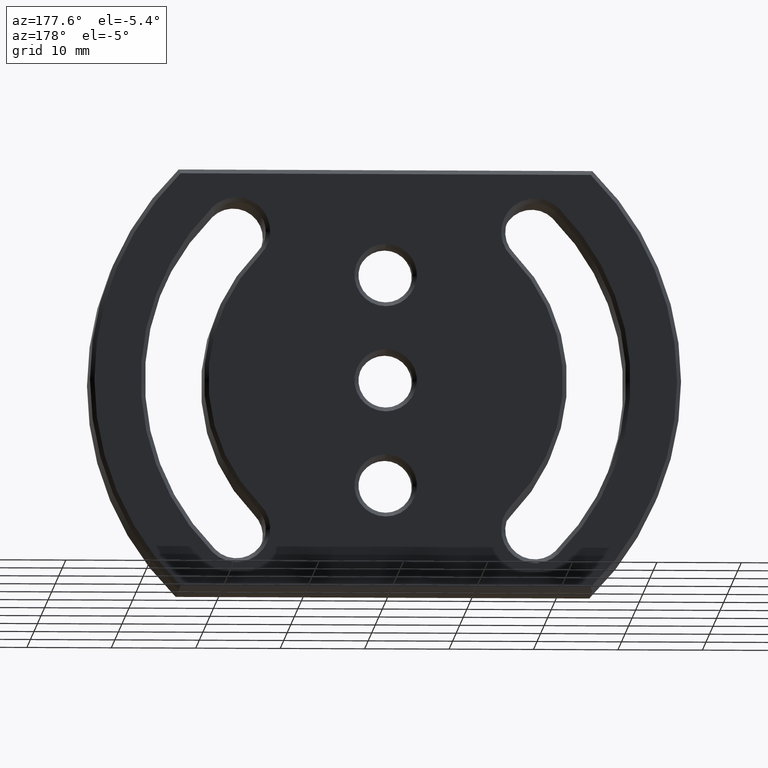
[diagram: clean part render]
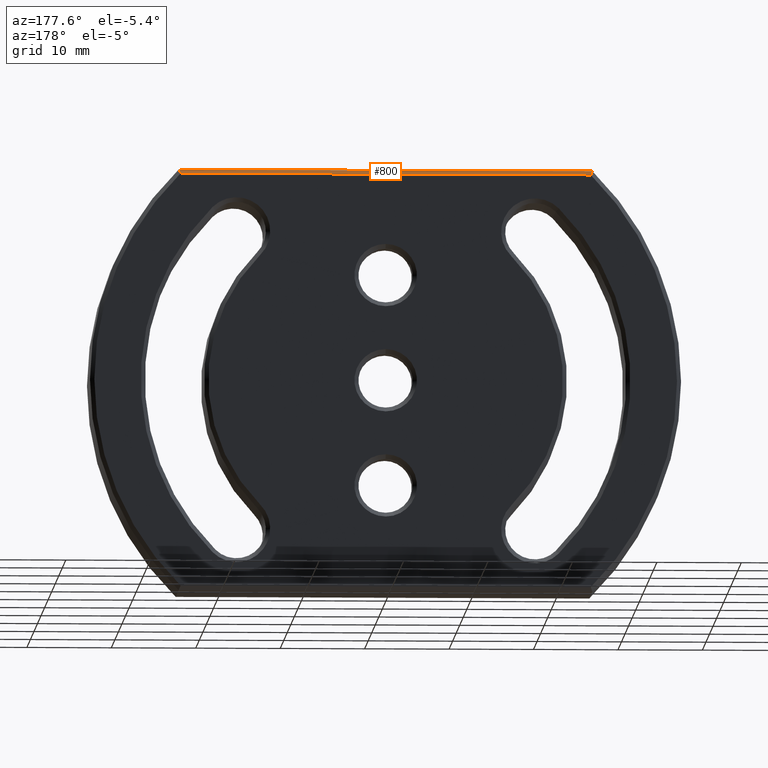
[diagram: same view with one face highlighted and labeled with its STEP entity id]
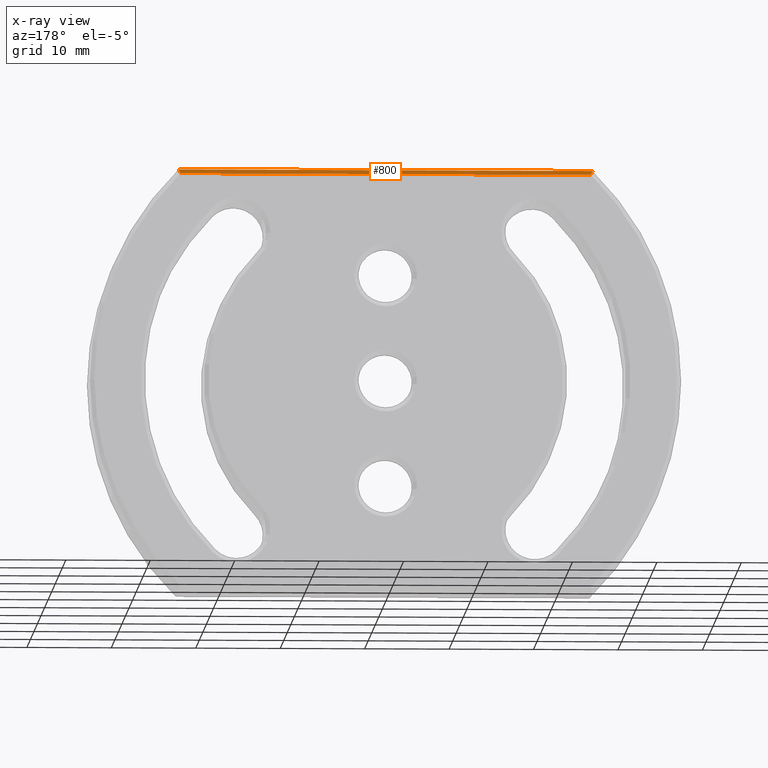
[diagram: x-ray of the same camera — body ghosted, the highlighted face saturated]
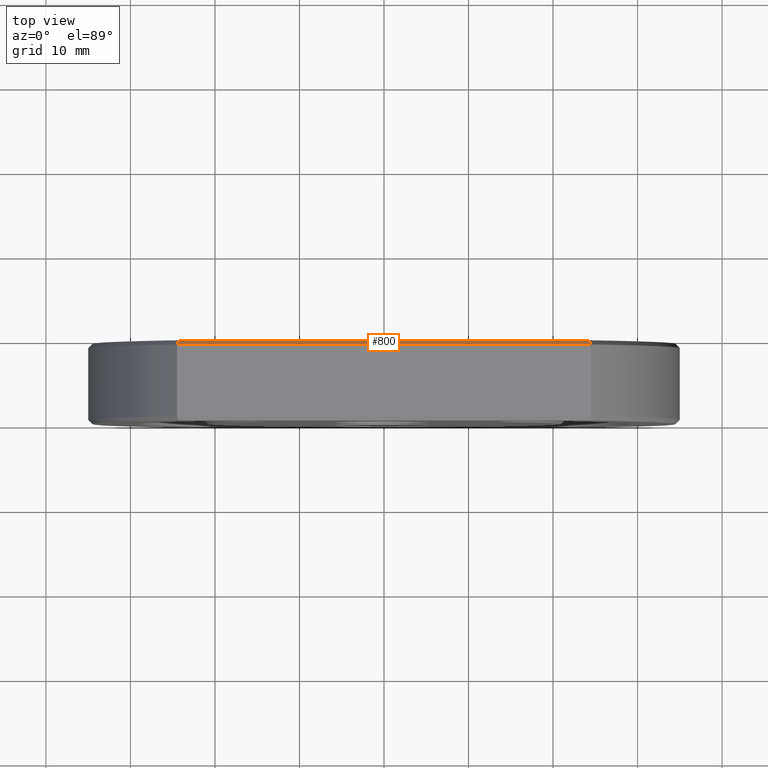
[diagram: same view with one face highlighted and labeled with its STEP entity id]
A machine part, auxiliary view. The second image highlights one B-rep face of the part: STEP entity #800.
The next image is the same camera in x-ray: the body ghosted, the highlighted face saturated — about 0% of this face is hidden behind the body in this view.
A second angle (top view) of the same face is appended — the face is thin or edge-on in the first view.
In plain terms, the highlighted planar face has unit normal (0, 0.7071, 0.7071).
Its self-contained STEP definition (entity closure, byte-faithful):
#11 = CARTESIAN_POINT ( 'NONE',  ( -24.28991560298224400, 9.500000000000000000, 24.49999999999999600 ) ) ;
#17 = DIRECTION ( 'NONE',  ( -1.000000000000000000, 0.0000000000000000000, 0.0000000000000000000 ) ) ;
#36 = CARTESIAN_POINT ( 'NONE',  ( 24.49489742783177700, 9.000000000000000000, 24.99999999999999600 ) ) ;
#73 = CARTESIAN_POINT ( 'NONE',  ( 0.0000000000000000000, 9.500000000000000000, 24.49999999999999600 ) ) ;
#77 = CARTESIAN_POINT ( 'NONE',  ( -24.49489742783178400, 9.000000000000000000, 24.99999999999999600 ) ) ;
#102 = CARTESIAN_POINT ( 'NONE',  ( 24.35850870352451400, 9.333387937688133500, 24.66661206231186300 ) ) ;
#103 = CARTESIAN_POINT ( 'NONE',  ( 24.42683401166849300, 9.166720639750765900, 24.83327936024922900 ) ) ;
#153 = CARTESIAN_POINT ( 'NONE',  ( 24.28991560298224400, 9.500000000000000000, 24.49999999999999600 ) ) ;
#163 = DIRECTION ( 'NONE',  ( 0.0000000000000000000, 0.7071067811865475700, 0.7071067811865475700 ) ) ;
#170 = CARTESIAN_POINT ( 'NONE',  ( 24.49489742783177700, 9.500000000000000000, 24.49999999999999600 ) ) ;
#200 = DIRECTION ( 'NONE',  ( -1.000000000000000000, 0.0000000000000000000, 0.0000000000000000000 ) ) ;
#208 = CARTESIAN_POINT ( 'NONE',  ( -24.49489742783178400, 9.000000000000000000, 25.00000000000000000 ) ) ;
#219 = CARTESIAN_POINT ( 'NONE',  ( 24.49489742783177700, 9.000000000000000000, 24.99999999999999600 ) ) ;
#233 = CARTESIAN_POINT ( 'NONE',  ( -24.49489742783178400, 9.000000000000000000, 25.00000000000000000 ) ) ;
#342 = CARTESIAN_POINT ( 'NONE',  ( 24.28991560298224400, 9.500000000000000000, 24.49999999999999600 ) ) ;
#390 = DIRECTION ( 'NONE',  ( 1.000000000000000000, 0.0000000000000000000, 0.0000000000000000000 ) ) ;
#417 = CARTESIAN_POINT ( 'NONE',  ( -24.28991560298224400, 9.500000000000000000, 24.49999999999999600 ) ) ;
#469 = PLANE ( 'NONE',  #654 ) ;
#476 = CARTESIAN_POINT ( 'NONE',  ( -24.35850870352451700, 9.333387937688133500, 24.66661206231186300 ) ) ;
#503 = CARTESIAN_POINT ( 'NONE',  ( -24.42683401166849300, 9.166720639750765900, 24.83327936024923200 ) ) ;
#542 = EDGE_CURVE ( 'NONE', #1067, #1171, #1470, .T. ) ;
#562 = EDGE_CURVE ( 'NONE', #1067, #1126, #905, .T. ) ;
#575 = EDGE_CURVE ( 'NONE', #1179, #1126, #1474, .T. ) ;
#595 = EDGE_CURVE ( 'NONE', #1179, #1171, #1194, .T. ) ;
#654 = AXIS2_PLACEMENT_3D ( 'NONE', #73, #163, #200 ) ;
#800 = ADVANCED_FACE ( 'NONE', ( #966 ), #469, .T. ) ;
#905 = LINE ( 'NONE', #77, #907 ) ;
#907 = VECTOR ( 'NONE', #17, 1000.000000000000000 ) ;
#952 = ORIENTED_EDGE ( 'NONE', *, *, #562, .F. ) ;
#966 = FACE_OUTER_BOUND ( 'NONE', #1076, .T. ) ;
#1037 = ORIENTED_EDGE ( 'NONE', *, *, #575, .T. ) ;
#1045 = ORIENTED_EDGE ( 'NONE', *, *, #595, .F. ) ;
#1067 = VERTEX_POINT ( 'NONE', #36 ) ;
#1076 = EDGE_LOOP ( 'NONE', ( #1037, #952, #1425, #1045 ) ) ;
#1126 = VERTEX_POINT ( 'NONE', #208 ) ;
#1171 = VERTEX_POINT ( 'NONE', #342 ) ;
#1179 = VERTEX_POINT ( 'NONE', #417 ) ;
#1194 = LINE ( 'NONE', #170, #1332 ) ;
#1332 = VECTOR ( 'NONE', #390, 1000.000000000000000 ) ;
#1425 = ORIENTED_EDGE ( 'NONE', *, *, #542, .T. ) ;
#1470 = B_SPLINE_CURVE_WITH_KNOTS ( 'NONE', 3,
 ( #219, #103, #102, #153 ),
 .UNSPECIFIED., .F., .F.,
 ( 4, 4 ),
 ( 0.0000000000000000000, 0.0007362184108799845100 ),
 .UNSPECIFIED. ) ;
#1474 = B_SPLINE_CURVE_WITH_KNOTS ( 'NONE', 3,
 ( #11, #476, #503, #233 ),
 .UNSPECIFIED., .F., .F.,
 ( 4, 4 ),
 ( 0.0000000000000000000, 0.0007362184108799858100 ),
 .UNSPECIFIED. ) ;